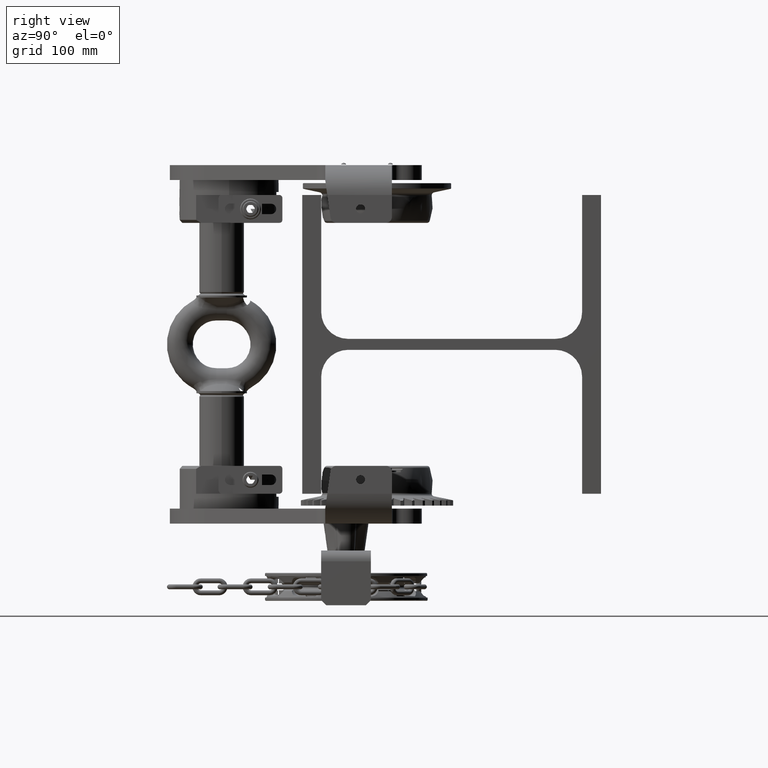
[diagram: clean part render]
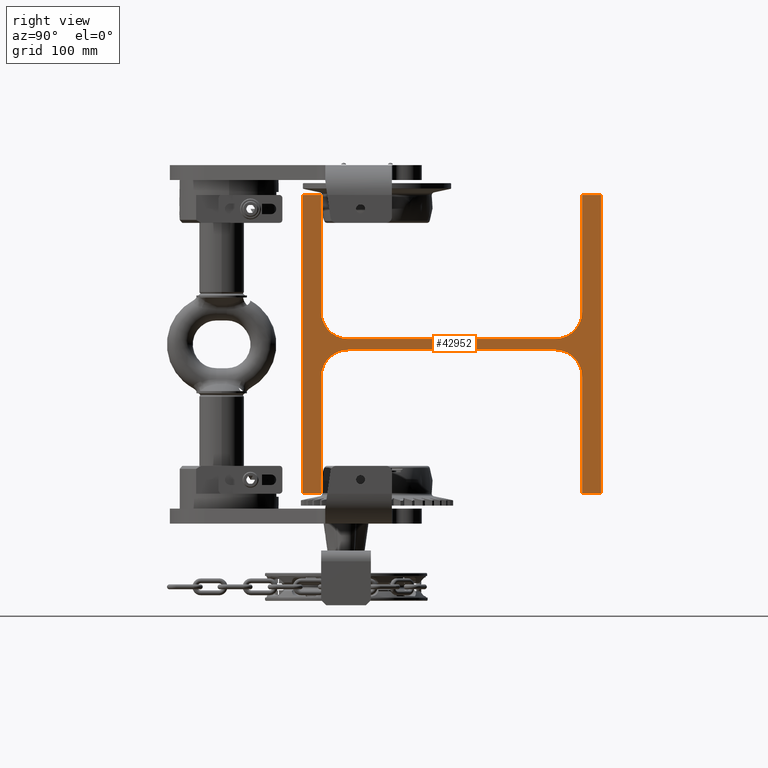
[diagram: same view with one face highlighted and labeled with its STEP entity id]
A machine part, right view. The second image highlights one B-rep face of the part: STEP entity #42952.
In plain terms, the highlighted planar face has unit normal (-1, 0, 0).
Its self-contained STEP definition (entity closure, byte-faithful):
#521 = VECTOR ( 'NONE', #37665, 1000.000000000000000 ) ;
#568 = VECTOR ( 'NONE', #41109, 1000.000000000000000 ) ;
#1133 = VECTOR ( 'NONE', #36120, 1000.000000000000000 ) ;
#1410 = EDGE_CURVE ( 'NONE', #34521, #16530, #21428, .T. ) ;
#1442 = CARTESIAN_POINT ( 'NONE',  ( 150.0000000000000900, 130.9999999999997700, 32.50000000000009200 ) ) ;
#1654 = ORIENTED_EDGE ( 'NONE', *, *, #43450, .T. ) ;
#2041 = CARTESIAN_POINT ( 'NONE',  ( 150.0000000000000900, 130.9999999999998300, -149.9999999999997700 ) ) ;
#2318 = VERTEX_POINT ( 'NONE', #45888 ) ;
#2541 = CARTESIAN_POINT ( 'NONE',  ( 150.0000000000000900, 103.9999999999998200, -32.49999999999988600 ) ) ;
#3228 = CARTESIAN_POINT ( 'NONE',  ( 149.9999999999999400, -150.0000000000000300, 150.0000000000002300 ) ) ;
#3278 = AXIS2_PLACEMENT_3D ( 'NONE', #6419, #34670, #30377 ) ;
#3522 = LINE ( 'NONE', #35551, #12177 ) ;
#3664 = EDGE_CURVE ( 'NONE', #40960, #19315, #15691, .T. ) ;
#4499 = CARTESIAN_POINT ( 'NONE',  ( 149.9999999999999700, -104.0000000000000400, -32.49999999999978000 ) ) ;
#4905 = VECTOR ( 'NONE', #39469, 1000.000000000000000 ) ;
#4957 = CARTESIAN_POINT ( 'NONE',  ( 149.9999999999999700, -103.9999999999998700, 32.50000000000020600 ) ) ;
#5360 = VERTEX_POINT ( 'NONE', #6470 ) ;
#5750 = EDGE_CURVE ( 'NONE', #53101, #10562, #37026, .T. ) ;
#6129 = EDGE_CURVE ( 'NONE', #5360, #32539, #40646, .T. ) ;
#6419 = CARTESIAN_POINT ( 'NONE',  ( 150.0000000000000900, 103.9999999999997600, 32.50000000000011400 ) ) ;
#6470 = CARTESIAN_POINT ( 'NONE',  ( 149.9999999999999400, -150.0000000000001100, -149.9999999999997700 ) ) ;
#9275 = LINE ( 'NONE', #36447, #568 ) ;
#9794 = EDGE_CURVE ( 'NONE', #36718, #27631, #51537, .T. ) ;
#9857 = ORIENTED_EDGE ( 'NONE', *, *, #25960, .T. ) ;
#10219 = LINE ( 'NONE', #23303, #21063 ) ;
#10562 = VERTEX_POINT ( 'NONE', #30245 ) ;
#11275 = CARTESIAN_POINT ( 'NONE',  ( 149.9999999999998900, -131.0000000000000600, -149.9999999999996900 ) ) ;
#11347 = DIRECTION ( 'NONE',  ( 5.680462498180319700E-017, 5.381000649783794900E-016, 1.000000000000000000 ) ) ;
#12177 = VECTOR ( 'NONE', #40188, 1000.000000000000000 ) ;
#13343 = LINE ( 'NONE', #14059, #19904 ) ;
#13462 = VERTEX_POINT ( 'NONE', #45287 ) ;
#14059 = CARTESIAN_POINT ( 'NONE',  ( 149.9999999999999700, -103.9999999999999000, 5.500000000000218500 ) ) ;
#14273 = LINE ( 'NONE', #28544, #521 ) ;
#15409 = VERTEX_POINT ( 'NONE', #51037 ) ;
#15603 = CARTESIAN_POINT ( 'NONE',  ( 150.0000000000000900, 130.9999999999997700, -32.49999999999989300 ) ) ;
#15691 = LINE ( 'NONE', #41536, #46967 ) ;
#15749 = CARTESIAN_POINT ( 'NONE',  ( 149.9999999999999700, -104.0000000000000400, -32.49999999999978000 ) ) ;
#15965 = ORIENTED_EDGE ( 'NONE', *, *, #57761, .T. ) ;
#16462 = EDGE_CURVE ( 'NONE', #13462, #28148, #19549, .T. ) ;
#16530 = VERTEX_POINT ( 'NONE', #30631 ) ;
#16701 = DIRECTION ( 'NONE',  ( 0.0000000000000000000, -5.139921410301653800E-016, -1.000000000000000000 ) ) ;
#19315 = VERTEX_POINT ( 'NONE', #31743 ) ;
#19549 = LINE ( 'NONE', #15603, #50084 ) ;
#19904 = VECTOR ( 'NONE', #55041, 1000.000000000000000 ) ;
#21063 = VECTOR ( 'NONE', #46869, 1000.000000000000000 ) ;
#21421 = EDGE_CURVE ( 'NONE', #28148, #38482, #53274, .T. ) ;
#21428 = LINE ( 'NONE', #3228, #1133 ) ;
#22076 = ORIENTED_EDGE ( 'NONE', *, *, #28743, .F. ) ;
#23303 = CARTESIAN_POINT ( 'NONE',  ( 149.9999999999999700, -104.0000000000000100, -5.499999999999782400 ) ) ;
#23382 = ORIENTED_EDGE ( 'NONE', *, *, #5750, .F. ) ;
#23405 = CARTESIAN_POINT ( 'NONE',  ( 150.0000000000000900, 130.9999999999998300, -149.9999999999997700 ) ) ;
#24680 = EDGE_LOOP ( 'NONE', ( #37495, #1654, #15965, #42321, #56233, #33979, #46910, #30947, #34750, #23382, #53474, #38100, #22076, #37896, #9857, #30844 ) ) ;
#24978 = DIRECTION ( 'NONE',  ( -5.680462498180270400E-017, 4.067705942770730700E-016, -1.000000000000000000 ) ) ;
#25408 = VECTOR ( 'NONE', #11347, 1000.000000000000000 ) ;
#25624 = EDGE_CURVE ( 'NONE', #32539, #49682, #9275, .T. ) ;
#25960 = EDGE_CURVE ( 'NONE', #34521, #5360, #32522, .T. ) ;
#26328 = CIRCLE ( 'NONE', #40629, 26.99999999999998200 ) ;
#27631 = VERTEX_POINT ( 'NONE', #35588 ) ;
#28148 = VERTEX_POINT ( 'NONE', #2041 ) ;
#28544 = CARTESIAN_POINT ( 'NONE',  ( 149.9999999999999700, -130.9999999999999400, 150.0000000000002600 ) ) ;
#28743 = EDGE_CURVE ( 'NONE', #16530, #36718, #14273, .T. ) ;
#29332 = CARTESIAN_POINT ( 'NONE',  ( 149.9999999999999400, -150.0000000000000300, 150.0000000000002300 ) ) ;
#29975 = AXIS2_PLACEMENT_3D ( 'NONE', #4957, #46806, #51229 ) ;
#30045 = EDGE_CURVE ( 'NONE', #27631, #53101, #13343, .T. ) ;
#30245 = CARTESIAN_POINT ( 'NONE',  ( 150.0000000000000900, 130.9999999999997700, 32.50000000000009200 ) ) ;
#30377 = DIRECTION ( 'NONE',  ( 0.0000000000000000000, -5.139921410301647800E-016, -1.000000000000000000 ) ) ;
#30459 = VECTOR ( 'NONE', #58440, 1000.000000000000000 ) ;
#30631 = CARTESIAN_POINT ( 'NONE',  ( 149.9999999999999700, -130.9999999999999400, 150.0000000000002600 ) ) ;
#30832 = CARTESIAN_POINT ( 'NONE',  ( 149.9999999999999400, -150.0000000000000300, 150.0000000000002300 ) ) ;
#30844 = ORIENTED_EDGE ( 'NONE', *, *, #6129, .T. ) ;
#30947 = ORIENTED_EDGE ( 'NONE', *, *, #3664, .F. ) ;
#31017 = EDGE_CURVE ( 'NONE', #13462, #15409, #26328, .T. ) ;
#31743 = CARTESIAN_POINT ( 'NONE',  ( 150.0000000000001100, 149.9999999999999700, 150.0000000000001100 ) ) ;
#32473 = CARTESIAN_POINT ( 'NONE',  ( 149.9999999999998900, -130.9999999999998600, 32.50000000000019900 ) ) ;
#32522 = LINE ( 'NONE', #29332, #4905 ) ;
#32539 = VERTEX_POINT ( 'NONE', #11275 ) ;
#32804 = DIRECTION ( 'NONE',  ( 5.273559366969494600E-016, 1.000000000000000000, 9.227197042652381800E-016 ) ) ;
#33203 = CARTESIAN_POINT ( 'NONE',  ( 150.0000000000000300, 149.9999999999998600, -149.9999999999999100 ) ) ;
#33979 = ORIENTED_EDGE ( 'NONE', *, *, #21421, .T. ) ;
#34521 = VERTEX_POINT ( 'NONE', #30832 ) ;
#34670 = DIRECTION ( 'NONE',  ( 1.000000000000000000, -5.273559366969493600E-016, -5.680462498180316000E-017 ) ) ;
#34750 = ORIENTED_EDGE ( 'NONE', *, *, #53462, .F. ) ;
#35551 = CARTESIAN_POINT ( 'NONE',  ( 150.0000000000000300, 149.9999999999998600, -149.9999999999999100 ) ) ;
#35588 = CARTESIAN_POINT ( 'NONE',  ( 149.9999999999999700, -103.9999999999999000, 5.500000000000211400 ) ) ;
#36120 = DIRECTION ( 'NONE',  ( 5.273559366969492600E-016, 1.000000000000000000, -1.998919834222000300E-015 ) ) ;
#36404 = CIRCLE ( 'NONE', #43915, 27.00000000000000400 ) ;
#36447 = CARTESIAN_POINT ( 'NONE',  ( 149.9999999999998900, -131.0000000000000600, -149.9999999999996900 ) ) ;
#36587 = VECTOR ( 'NONE', #50802, 1000.000000000000000 ) ;
#36718 = VERTEX_POINT ( 'NONE', #32473 ) ;
#37026 = CIRCLE ( 'NONE', #3278, 27.00000000000001400 ) ;
#37495 = ORIENTED_EDGE ( 'NONE', *, *, #25624, .T. ) ;
#37665 = DIRECTION ( 'NONE',  ( -5.680462498180259300E-017, 6.134610509892033000E-016, -1.000000000000000000 ) ) ;
#37894 = CARTESIAN_POINT ( 'NONE',  ( 149.9999999999998900, -131.0000000000000300, -32.49999999999975100 ) ) ;
#37896 = ORIENTED_EDGE ( 'NONE', *, *, #1410, .F. ) ;
#38100 = ORIENTED_EDGE ( 'NONE', *, *, #9794, .F. ) ;
#38482 = VERTEX_POINT ( 'NONE', #33203 ) ;
#39469 = DIRECTION ( 'NONE',  ( -5.680462498180304900E-017, -2.568905437241686200E-016, -1.000000000000000000 ) ) ;
#40188 = DIRECTION ( 'NONE',  ( 5.680462498180319700E-017, 5.381000649783794900E-016, 1.000000000000000000 ) ) ;
#40629 = AXIS2_PLACEMENT_3D ( 'NONE', #2541, #44385, #16701 ) ;
#40646 = LINE ( 'NONE', #57871, #30459 ) ;
#40960 = VERTEX_POINT ( 'NONE', #47269 ) ;
#41109 = DIRECTION ( 'NONE',  ( 5.680462498180312300E-017, 3.904640244697151800E-016, 1.000000000000000000 ) ) ;
#41536 = CARTESIAN_POINT ( 'NONE',  ( 150.0000000000001700, 130.9999999999998300, 150.0000000000001700 ) ) ;
#42321 = ORIENTED_EDGE ( 'NONE', *, *, #31017, .F. ) ;
#42841 = LINE ( 'NONE', #1442, #25408 ) ;
#42952 = ADVANCED_FACE ( 'NONE', ( #46764 ), #43227, .F. ) ;
#43227 = PLANE ( 'NONE',  #58917 ) ;
#43450 = EDGE_CURVE ( 'NONE', #49682, #2318, #36404, .T. ) ;
#43915 = AXIS2_PLACEMENT_3D ( 'NONE', #4499, #51554, #60047 ) ;
#44385 = DIRECTION ( 'NONE',  ( 1.000000000000000000, -5.273559366969493600E-016, -5.680462498180316000E-017 ) ) ;
#45287 = CARTESIAN_POINT ( 'NONE',  ( 150.0000000000000900, 130.9999999999997700, -32.49999999999989300 ) ) ;
#45888 = CARTESIAN_POINT ( 'NONE',  ( 149.9999999999999700, -104.0000000000000100, -5.499999999999782400 ) ) ;
#46764 = FACE_OUTER_BOUND ( 'NONE', #24680, .T. ) ;
#46806 = DIRECTION ( 'NONE',  ( 1.000000000000000000, -5.273559366969493600E-016, -5.680462498180316000E-017 ) ) ;
#46869 = DIRECTION ( 'NONE',  ( 5.273559366969493600E-016, 1.000000000000000000, -5.381000649783789900E-016 ) ) ;
#46910 = ORIENTED_EDGE ( 'NONE', *, *, #58579, .T. ) ;
#46967 = VECTOR ( 'NONE', #32804, 1000.000000000000000 ) ;
#47269 = CARTESIAN_POINT ( 'NONE',  ( 150.0000000000001700, 130.9999999999998300, 150.0000000000001700 ) ) ;
#48491 = DIRECTION ( 'NONE',  ( -1.000000000000000000, 5.273559366969493600E-016, 5.680462498180291300E-017 ) ) ;
#49562 = CARTESIAN_POINT ( 'NONE',  ( 150.0000000000000900, 103.9999999999997600, 5.500000000000106600 ) ) ;
#49682 = VERTEX_POINT ( 'NONE', #37894 ) ;
#50084 = VECTOR ( 'NONE', #24978, 1000.000000000000000 ) ;
#50802 = DIRECTION ( 'NONE',  ( 5.273559366969491600E-016, 1.000000000000000000, -3.459739603465630200E-015 ) ) ;
#51037 = CARTESIAN_POINT ( 'NONE',  ( 150.0000000000000900, 103.9999999999998200, -5.499999999999903200 ) ) ;
#51229 = DIRECTION ( 'NONE',  ( 0.0000000000000000000, -5.139921410301651800E-016, -1.000000000000000000 ) ) ;
#51537 = CIRCLE ( 'NONE', #29975, 26.99999999999999600 ) ;
#51554 = DIRECTION ( 'NONE',  ( -1.000000000000000000, 5.273559366969493600E-016, 5.680462498180316000E-017 ) ) ;
#53081 = DIRECTION ( 'NONE',  ( 5.680462498180319700E-017, 5.381000649783794900E-016, 1.000000000000000000 ) ) ;
#53101 = VERTEX_POINT ( 'NONE', #49562 ) ;
#53274 = LINE ( 'NONE', #23405, #36587 ) ;
#53462 = EDGE_CURVE ( 'NONE', #10562, #40960, #42841, .T. ) ;
#53474 = ORIENTED_EDGE ( 'NONE', *, *, #30045, .F. ) ;
#55041 = DIRECTION ( 'NONE',  ( 5.273559366969493600E-016, 1.000000000000000000, -5.381000649783789900E-016 ) ) ;
#56233 = ORIENTED_EDGE ( 'NONE', *, *, #16462, .T. ) ;
#57761 = EDGE_CURVE ( 'NONE', #2318, #15409, #10219, .T. ) ;
#57871 = CARTESIAN_POINT ( 'NONE',  ( 149.9999999999999400, -150.0000000000001100, -149.9999999999997700 ) ) ;
#58440 = DIRECTION ( 'NONE',  ( 5.273559366969494600E-016, 1.000000000000000000, 9.227197042652452800E-016 ) ) ;
#58579 = EDGE_CURVE ( 'NONE', #38482, #19315, #3522, .T. ) ;
#58917 = AXIS2_PLACEMENT_3D ( 'NONE', #15749, #48491, #53081 ) ;
#60047 = DIRECTION ( 'NONE',  ( 0.0000000000000000000, 5.139921410301649800E-016, 1.000000000000000000 ) ) ;